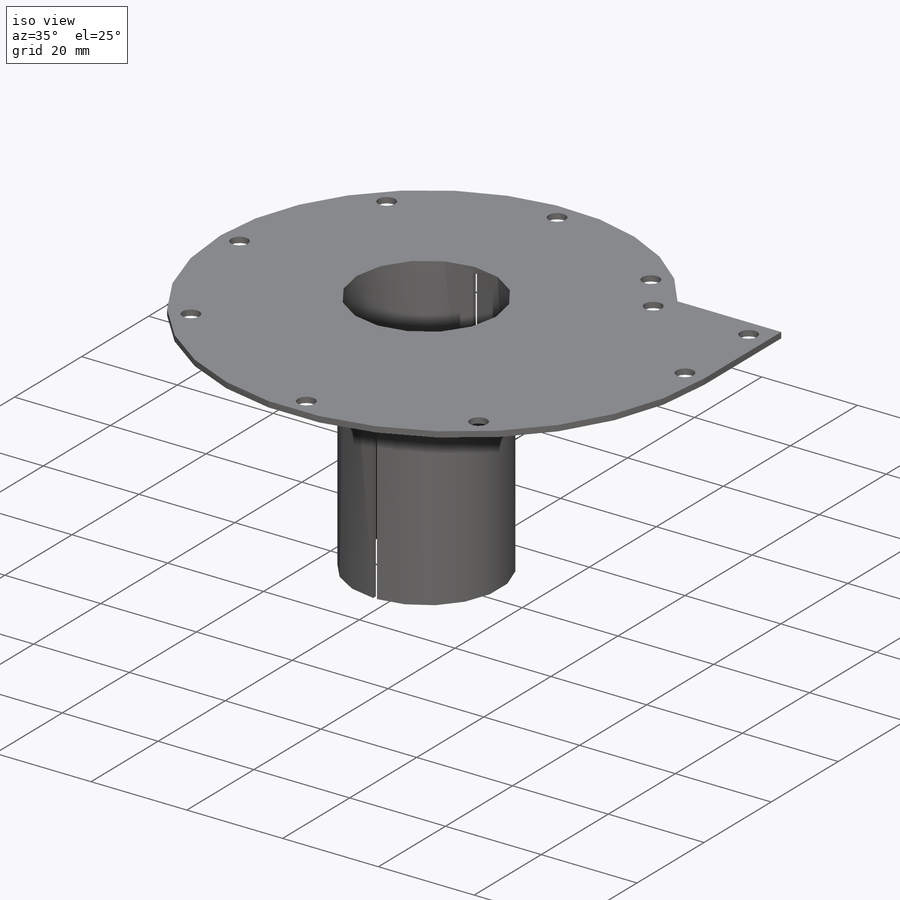
[diagram: iso view]
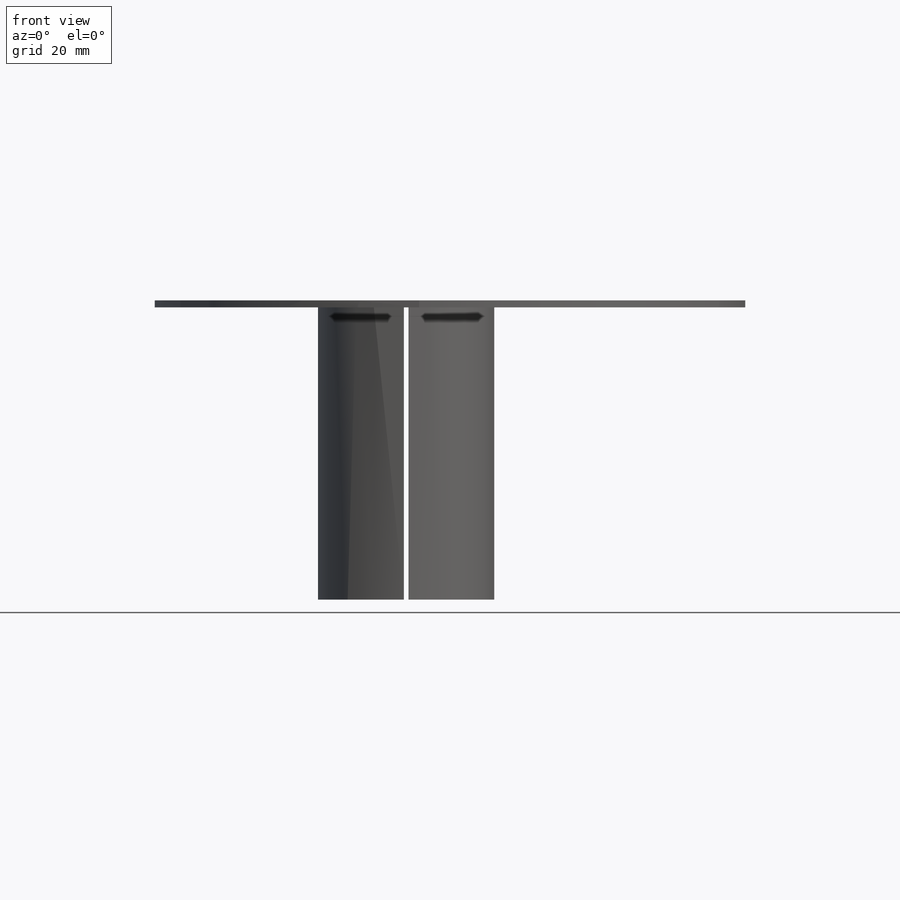
[diagram: front view]
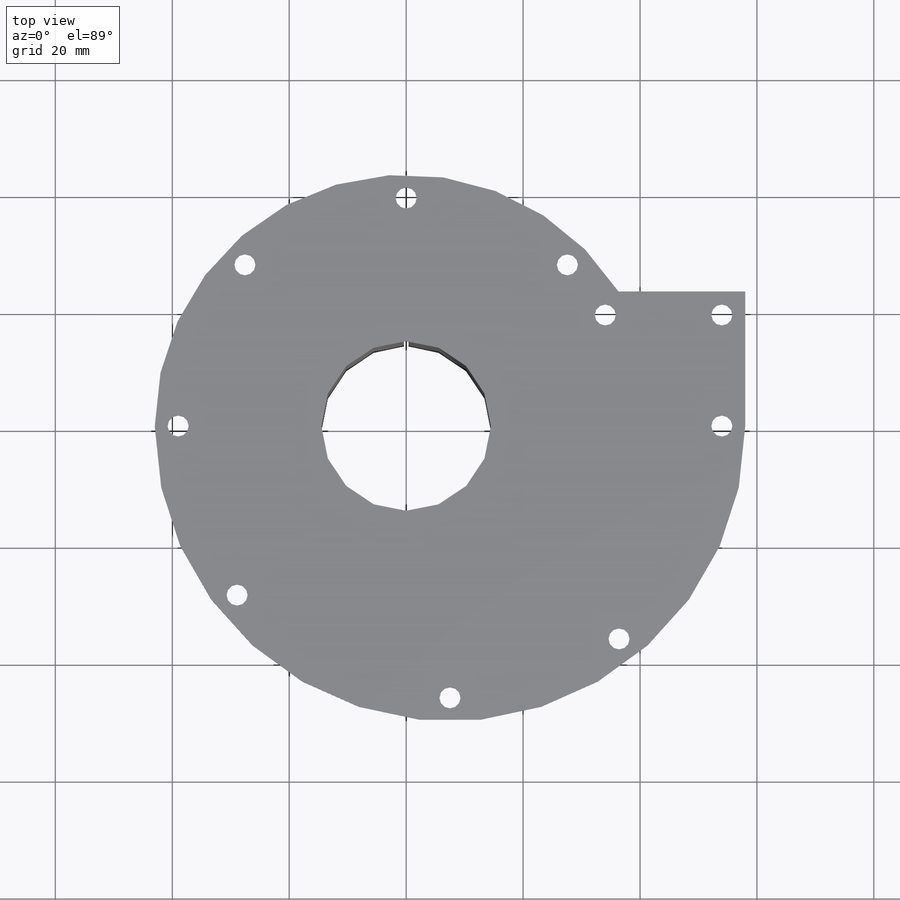
[diagram: top view]
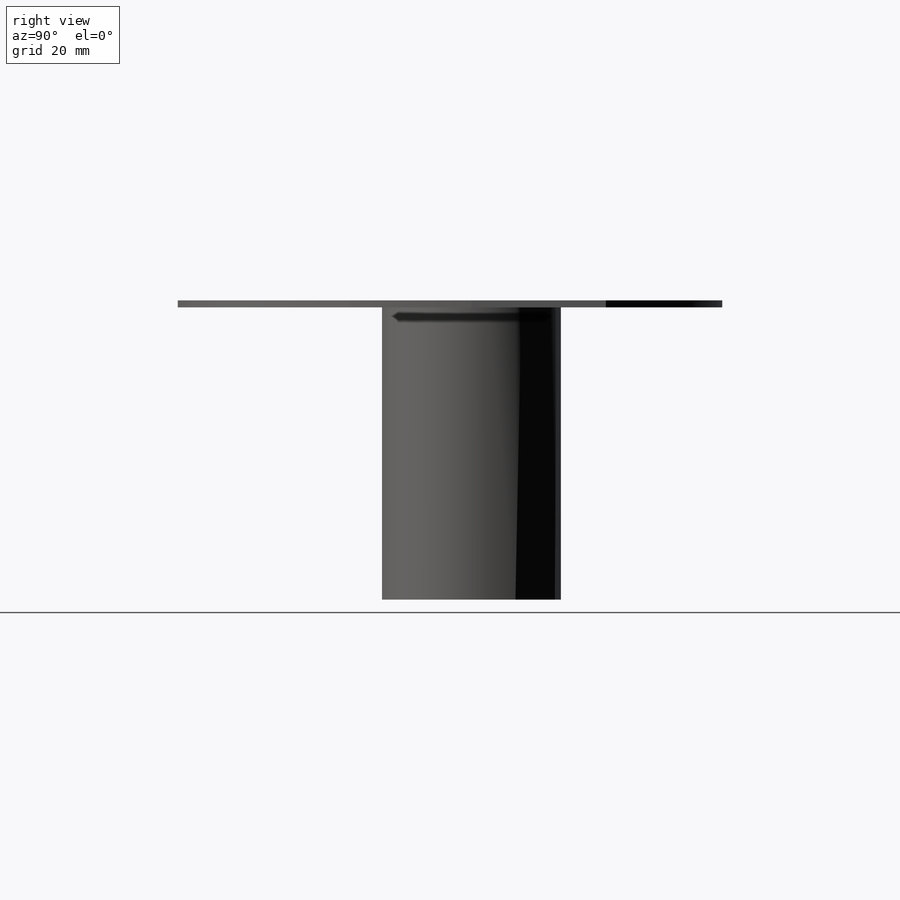
[diagram: right view]
SOLIDWORKS PART (.sldprt)
format: sldprt  version: not decoded by parser v0  size: 262,144 bytes
history: native  units: mm
features: sketch x6, plane x3, cut_extrude x3, extrude x2, material x1 (+8 scaffold rows collapsed)
feature tree (23):
  scaffold x8  (default folders/planes/origin — collapsed)
  material  "Материал <не указан>"
  plane  "Спереди"
  plane  "Сверху"
  plane  "Справа"
  sketch  "Эскиз1"  dims[D1=15.0mm D2=15.0mm]
  extrude  "Бобышка-Вытянуть1"  Depth=1.2mm
  sketch  "Эскиз2"  dims[c1.D1=~15.432316mm c2.D1=50.0mm c2.D5=0.8mm c2.D6=1.0mm c2.D7=5.0mm]
  sketch  "Эскиз7"  dims[D1=8.0mm]
  extrude  "Бобышка-Вытянуть2"  Depth=1.2mm
  sketch  "Эскиз8"  dims[D2=~1.746767mm D1=4.0mm]
  cut_extrude  "Вырез-Вытянуть4"  [1 undecoded]
  cut_extrude  "Вырез-Вытянуть1"  [1 undecoded]
  sketch  "Эскиз2<2>"
  sketch  "Эскиз3"  dims[D1=0.8mm D2=35.0mm]
  cut_extrude  "Вырез-Вытянуть2"  [1 undecoded]
decode coverage: 7 of 11 modeling features carry decoded parameters
note: ~ marks probable driven/reference dimensions
note: 3 parameter values undecoded
summary: no parameter record found for 3 features
note: suppression state not decoded; provenance and decode notes live in map.json
